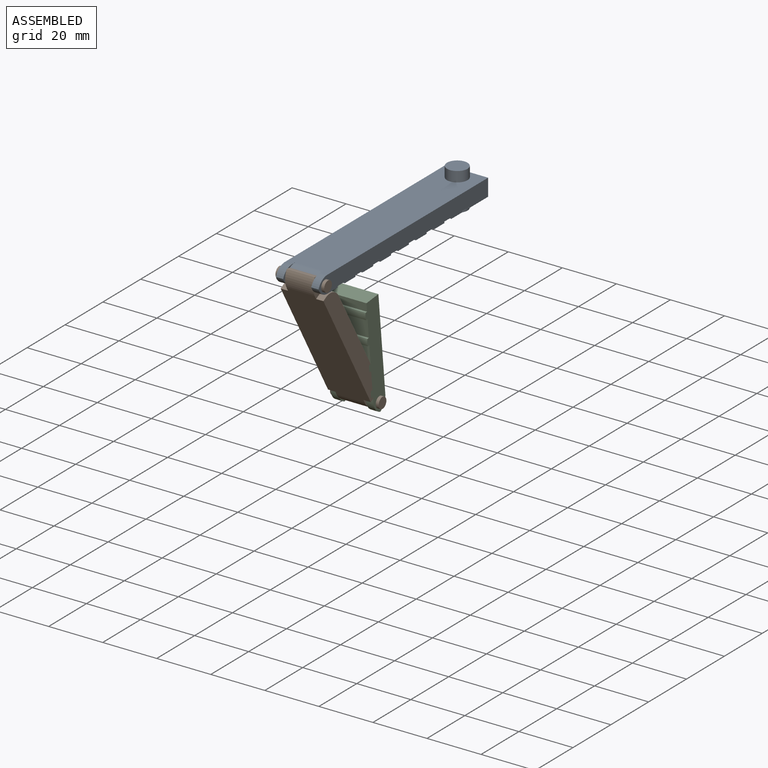
[diagram: assembled view]
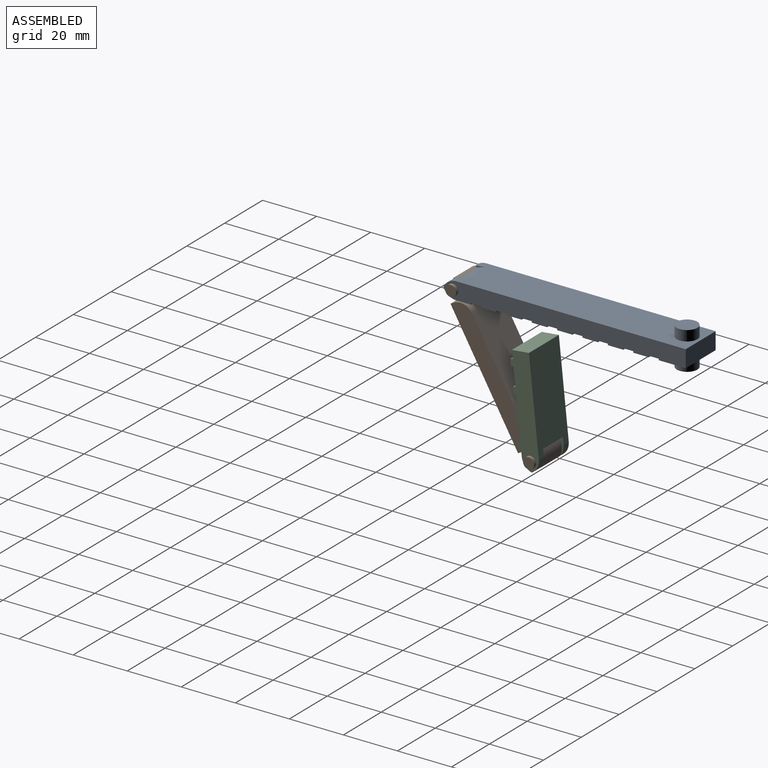
[diagram: assembled view, second angle]
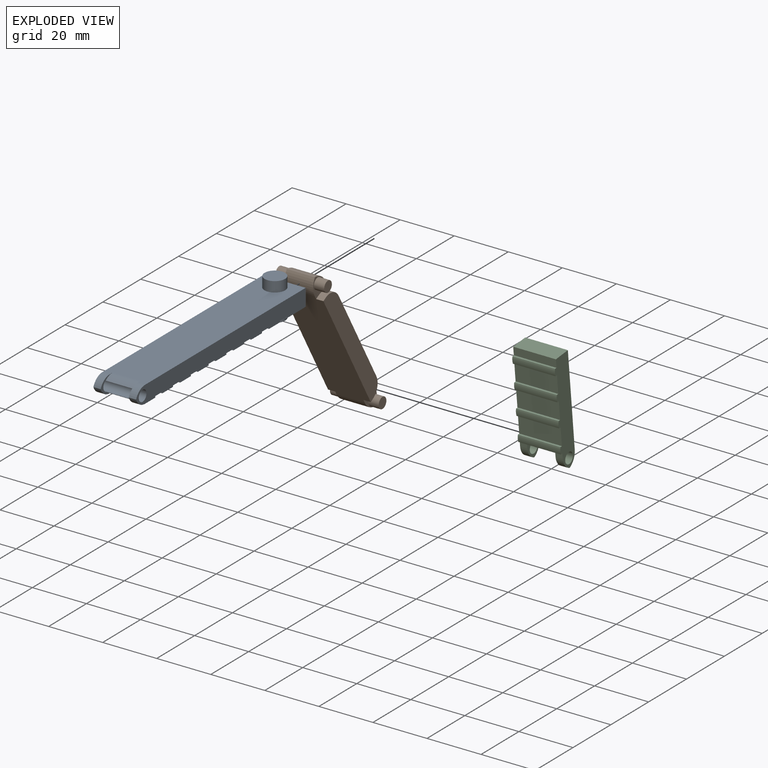
[diagram: exploded view]
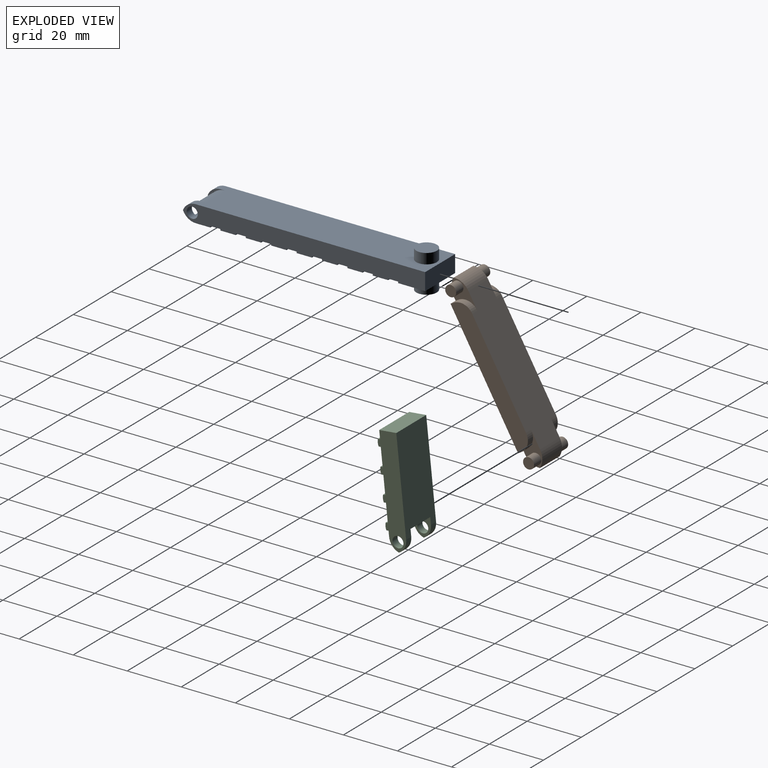
[diagram: exploded view, second angle]
ASSEMBLY  parts=3 mates=2
PART A: 50 faces, bbox 15.8x89.6x14 mm
  f0: plane 15.81x5.69mm, normal (0,0,-1), area 89.9mm2, adj f8,f9,f44,f47
  f1: plane 15.81x5.69mm, normal (0,0,-1), area 89.9mm2, adj f8,f9,f41,f45
  f2: plane 15.81x5.69mm, normal (0,0,-1), area 89.9mm2, adj f8,f9,f38,f42
  f3: plane 15.81x5.69mm, normal (0,0,-1), area 89.9mm2, adj f8,f9,f35,f39
  f4: plane 15.81x5.69mm, normal (0,0,-1), area 89.9mm2, adj f8,f9,f32,f36
  f5: plane 15.81x5.69mm, normal (0,0,-1), area 89.9mm2, adj f8,f9,f29,f33
  f6: plane 15.81x5.69mm, normal (0,0,-1), area 89.9mm2, adj f8,f9,f26,f30
  f7: plane 15.81x5.43mm, normal (0,0,-1), area 67.9mm2, adj f8,f9,f13,f14,f17,f23,f25,f27
  f8: plane 89.63x6.35mm, normal (-1,0,0), area 533.1mm2, adj f0,f1,f2,f3,f4,f5,f6,f7
  f9: plane 89.63x6.35mm, normal (1,0,0), area 533.1mm2, adj f0,f1,f2,f3,f4,f5,f6,f7
  f10: plane 15.81x10mm, normal (0,0,-1), area 112.4mm2, adj f8,f9,f12,f18,f48
  f11: plane 84.92x15.81mm, normal (0,0,1), area 1278.7mm2, adj f8,f9,f12,f13,f14,f16,f20,f22
  f12: plane 15.81x6.35mm, normal (0,1,0), area 100.4mm2, adj f8,f9,f10,f11
  f13: plane 6.43x6.35mm, normal (1,0,0), area 8.3mm2, adj f7,f11,f15,f16,f17,f24,f25
  f14: plane 6.43x6.35mm, normal (-1,0,0), area 8.3mm2, adj f7,f11,f15,f16,f17,f22,f23
  f15: cylinder r=2.03mm len=15.81mm, axis (1,0,0), area 152.4mm2, adj f8,f9,f13,f14,f16,f17
  f16: cylinder r=6.13mm len=10.4mm, axis (1,0,0), area 42.4mm2, adj f11,f13,f14,f15
  f17: cylinder r=6.13mm len=10.4mm, axis (1,0,0), area 42.4mm2, adj f7,f13,f14,f15
  f18: cylinder r=3.81mm len=7.62mm, axis (0,0,1), area 91.2mm2, adj f10,f19
  f19: plane 7.62x7.62mm, normal (0,0,-1), area 45.6mm2, adj f18
  f20: cylinder r=3.81mm len=7.62mm, axis (0,0,-1), area 91.2mm2, adj f11,f21
  f21: plane 7.62x7.62mm, normal (0,0,1), area 45.6mm2, adj f20
  f22: cylinder r=5.08mm len=4.71mm, axis (1,0,0), area 16.3mm2, adj f9,f11,f14,f23
  f23: cylinder r=5.08mm len=4.71mm, axis (-1,0,0), area 16.3mm2, adj f7,f9,f14,f22
  f24: cylinder r=5.08mm len=4.71mm, axis (1,0,0), area 16.3mm2, adj f8,f11,f13,f25
  f25: cylinder r=5.08mm len=4.71mm, axis (-1,0,0), area 16.3mm2, adj f7,f8,f13,f24
  f26: plane 15.81x0.5mm, normal (0,-1,0), area 7.9mm2, adj f6,f8,f9,f28
  f27: plane 15.81x0.5mm, normal (0,1,0), area 7.9mm2, adj f7,f8,f9,f28
  f28: plane 15.81x3.71mm, normal (0,0,-1), area 58.6mm2, adj f8,f9,f26,f27
  f29: plane 15.81x0.5mm, normal (0,-1,0), area 7.9mm2, adj f5,f8,f9,f31
  f30: plane 15.81x0.5mm, normal (0,1,0), area 7.9mm2, adj f6,f8,f9,f31
  f31: plane 15.81x3.71mm, normal (0,0,-1), area 58.6mm2, adj f8,f9,f29,f30
  f32: plane 15.81x0.5mm, normal (0,-1,0), area 7.9mm2, adj f4,f8,f9,f34
  f33: plane 15.81x0.5mm, normal (0,1,0), area 7.9mm2, adj f5,f8,f9,f34
  f34: plane 15.81x3.71mm, normal (0,0,-1), area 58.6mm2, adj f8,f9,f32,f33
  f35: plane 15.81x0.5mm, normal (0,-1,0), area 7.9mm2, adj f3,f8,f9,f37
  f36: plane 15.81x0.5mm, normal (0,1,0), area 7.9mm2, adj f4,f8,f9,f37
  f37: plane 15.81x3.71mm, normal (0,0,-1), area 58.6mm2, adj f8,f9,f35,f36
  f38: plane 15.81x0.5mm, normal (0,-1,0), area 7.9mm2, adj f2,f8,f9,f40
  f39: plane 15.81x0.5mm, normal (0,1,0), area 7.9mm2, adj f3,f8,f9,f40
  f40: plane 15.81x3.71mm, normal (0,0,-1), area 58.6mm2, adj f8,f9,f38,f39
  f41: plane 15.81x0.5mm, normal (0,-1,0), area 7.9mm2, adj f1,f8,f9,f43
  f42: plane 15.81x0.5mm, normal (0,1,0), area 7.9mm2, adj f2,f8,f9,f43
  f43: plane 15.81x3.71mm, normal (0,0,-1), area 58.6mm2, adj f8,f9,f41,f42
  f44: plane 15.81x0.5mm, normal (0,-1,0), area 7.9mm2, adj f0,f8,f9,f46
  f45: plane 15.81x0.5mm, normal (0,1,0), area 7.9mm2, adj f1,f8,f9,f46
  f46: plane 15.81x3.71mm, normal (0,0,-1), area 58.6mm2, adj f8,f9,f44,f45
  f47: plane 15.81x0.5mm, normal (0,1,0), area 7.9mm2, adj f0,f8,f9,f49
  f48: plane 15.81x0.5mm, normal (0,-1,0), area 7.9mm2, adj f8,f9,f10,f49
  f49: plane 15.81x3.71mm, normal (0,0,-1), area 58.6mm2, adj f8,f9,f47,f48
PART B: 28 faces, bbox 18x63.7x6.4 mm
  f0: plane 2.7x1.27mm, normal (0,-1,0), area 3.4mm2, adj f2,f5,f10,f27
  f1: plane 2.7x1.27mm, normal (0,1,0), area 3.4mm2, adj f2,f5,f8,f26
  f2: plane 50x6.35mm, normal (-1,0,0), area 306.4mm2, adj f0,f1,f3,f5,f26,f27
  f3: plane 52.99x15.81mm, normal (0,0,-1), area 766.4mm2, adj f2,f4,f8,f9,f10,f11,f20,f22
  f4: plane 50x6.35mm, normal (1,0,0), area 306.4mm2, adj f3,f5,f6,f7,f24,f25
  f5: plane 52.99x15.81mm, normal (0,0,1), area 821.4mm2, adj f0,f1,f2,f4,f6,f7,f8,f9
  f6: plane 2.7x1.27mm, normal (0,-1,0), area 3.4mm2, adj f4,f5,f11,f24
  f7: plane 2.7x1.27mm, normal (0,1,0), area 3.4mm2, adj f4,f5,f9,f25
  f8: plane 11.95x6.35mm, normal (-1,0,0), area 26.3mm2, adj f1,f3,f5,f16,f22,f23,f26
  f9: plane 11.95x6.35mm, normal (1,0,0), area 26.3mm2, adj f3,f5,f7,f12,f22,f23,f25
  f10: plane 11.95x6.35mm, normal (-1,0,0), area 26.3mm2, adj f0,f3,f5,f18,f20,f21,f27
  f11: plane 11.95x6.35mm, normal (1,0,0), area 26.3mm2, adj f3,f5,f6,f14,f20,f21,f24
  f12: cylinder r=2.03mm len=4.06mm, axis (-1,0,0), area 48.6mm2, adj f9,f13
  f13: plane 4.06x4.06mm, normal (1,0,0), area 13mm2, adj f12
  f14: cylinder r=2.03mm len=4.06mm, axis (-1,0,0), area 48.6mm2, adj f11,f15
  f15: plane 4.06x4.06mm, normal (1,0,0), area 13mm2, adj f14
  f16: cylinder r=2.03mm len=4.06mm, axis (1,0,0), area 48.6mm2, adj f8,f17
  f17: plane 4.06x4.06mm, normal (-1,0,0), area 13mm2, adj f16
  f18: cylinder r=2.03mm len=4.06mm, axis (1,0,0), area 48.6mm2, adj f10,f19
  f19: plane 4.06x4.06mm, normal (-1,0,0), area 13mm2, adj f18
  f20: cylinder r=6.13mm len=10.4mm, axis (-1,0,0), area 68.1mm2, adj f3,f10,f11,f21
  f21: cylinder r=6.13mm len=10.4mm, axis (1,0,0), area 68.1mm2, adj f5,f10,f11,f20
  f22: cylinder r=6.13mm len=10.4mm, axis (1,0,0), area 68.1mm2, adj f3,f8,f9,f23
  f23: cylinder r=6.13mm len=10.4mm, axis (-1,0,0), area 68.1mm2, adj f5,f8,f9,f22
  f24: cylinder r=5.08mm len=5.08mm, axis (-1,0,0), area 21.6mm2, adj f3,f4,f6,f11
  f25: cylinder r=5.08mm len=5.08mm, axis (1,0,0), area 21.6mm2, adj f3,f4,f7,f9
  f26: cylinder r=5.08mm len=5.08mm, axis (1,0,0), area 21.6mm2, adj f1,f2,f3,f8
  f27: cylinder r=5.08mm len=5.08mm, axis (-1,0,0), area 21.6mm2, adj f0,f2,f3,f10
PART C: 32 faces, bbox 15.8x39.6x7.3 mm
  f0: plane 34.92x15.81mm, normal (0,0,-1), area 364.9mm2, adj f1,f4,f6,f8,f14,f15,f16,f17
  f1: plane 7.25x6.35mm, normal (1,0,0), area 24.3mm2, adj f0,f3,f7,f10,f13,f14,f17,f18
  f2: plane 7.25x6.35mm, normal (-1,0,0), area 24.3mm2, adj f3,f5,f7,f9,f11,f12,f17,f18
  f3: plane 10.42x5.56mm, normal (0,1,0), area 58mm2, adj f1,f2,f7,f18
  f4: plane 39.63x6.35mm, normal (-1,0,0), area 230.4mm2, adj f0,f7,f8,f10,f13,f14
  f5: plane 2.69x1.95mm, normal (0,0,-1), area 5.3mm2, adj f2,f6,f12,f17
  f6: plane 39.63x7.34mm, normal (1,0,0), area 239.9mm2, adj f0,f5,f7,f8,f9,f11,f12,f15
  f7: plane 34.92x15.81mm, normal (0,0,1), area 525.4mm2, adj f1,f2,f3,f4,f6,f8,f11,f13
  f8: plane 15.81x6.35mm, normal (0,-1,0), area 100.4mm2, adj f0,f4,f6,f7
  f9: cylinder r=2.03mm len=4.06mm, axis (1,0,0), area 34.4mm2, adj f2,f6
  f10: cylinder r=2.03mm len=4.06mm, axis (1,0,0), area 34.4mm2, adj f1,f4
  f11: cylinder r=5.08mm len=4.71mm, axis (-1,0,0), area 16.2mm2, adj f2,f6,f7,f12
  f12: cylinder r=5.08mm len=4.71mm, axis (1,0,0), area 16.2mm2, adj f2,f5,f6,f11
  f13: cylinder r=5.08mm len=4.71mm, axis (-1,0,0), area 16.2mm2, adj f1,f4,f7,f14
  f14: cylinder r=5.08mm len=4.71mm, axis (1,0,0), area 16.2mm2, adj f0,f1,f4,f13
  f15: plane 15.75x0.79mm, normal (0,-1,0), area 12.4mm2, adj f0,f6,f16,f19
  f16: plane 2.56x0.99mm, normal (-1,0,0), area 2.4mm2, adj f0,f15,f17,f19
  f17: plane 15.75x1.58mm, normal (0,1,0), area 20.6mm2, adj f0,f1,f2,f5,f6,f16,f18,f19
  f18: plane 10.42x0.59mm, normal (0,0,1), area 6.1mm2, adj f1,f2,f3,f17
  f19: cylinder r=4.13mm len=15.75mm, axis (1,0,0), area 41mm2, adj f6,f15,f16,f17
  f20: plane 2.56x0.99mm, normal (-1,0,0), area 2.4mm2, adj f0,f21,f22,f23
  f21: plane 15.75x0.79mm, normal (0,1,0), area 12.4mm2, adj f0,f6,f20,f23
  f22: plane 15.75x0.79mm, normal (0,-1,0), area 12.4mm2, adj f0,f6,f20,f23
  f23: cylinder r=4.13mm len=15.75mm, axis (1,0,0), area 41mm2, adj f6,f20,f21,f22
  f24: plane 2.56x0.99mm, normal (-1,0,0), area 2.4mm2, adj f0,f25,f26,f27
  f25: plane 15.75x0.79mm, normal (0,1,0), area 12.4mm2, adj f0,f6,f24,f27
  f26: plane 15.75x0.79mm, normal (0,-1,0), area 12.4mm2, adj f0,f6,f24,f27
  f27: cylinder r=4.13mm len=15.75mm, axis (1,0,0), area 41mm2, adj f6,f24,f25,f26
  f28: plane 2.56x0.99mm, normal (-1,0,0), area 2.4mm2, adj f0,f29,f30,f31
  f29: plane 15.75x0.79mm, normal (0,1,0), area 12.4mm2, adj f0,f6,f28,f31
  f30: plane 15.75x0.79mm, normal (0,-1,0), area 12.4mm2, adj f0,f6,f28,f31
  f31: cylinder r=4.13mm len=15.75mm, axis (1,0,0), area 41mm2, adj f6,f28,f29,f30
PLACE A t=(-51.83,-82.13,-12.99)mm fixed
PLACE B rot(axis=(1,0,0),120deg) t=(-51.83,-220.77,77.85)mm
PLACE C rot(axis=(-1,0,0),84deg) t=(-51.82,-119.03,-257.66)mm
MATE revolute C.f9 <-> B.f18  axis (1,0,0) through (-57.03,-139.5,-62.9)mm
MATE revolute B.f12 <-> A.f15  axis (-1,0,0) through (-57.03,-168.32,-12.99)mm
